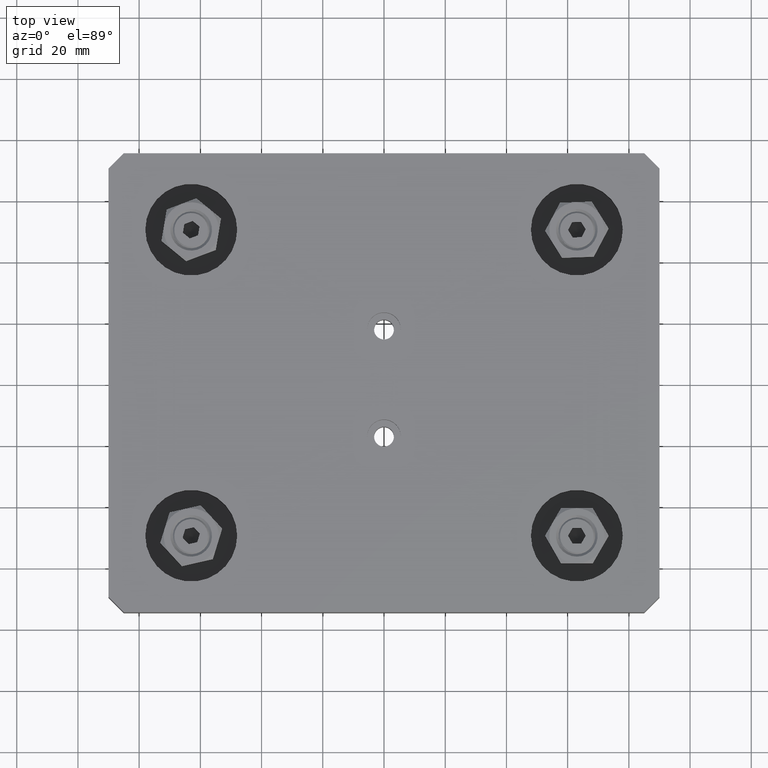
[diagram: clean part render]
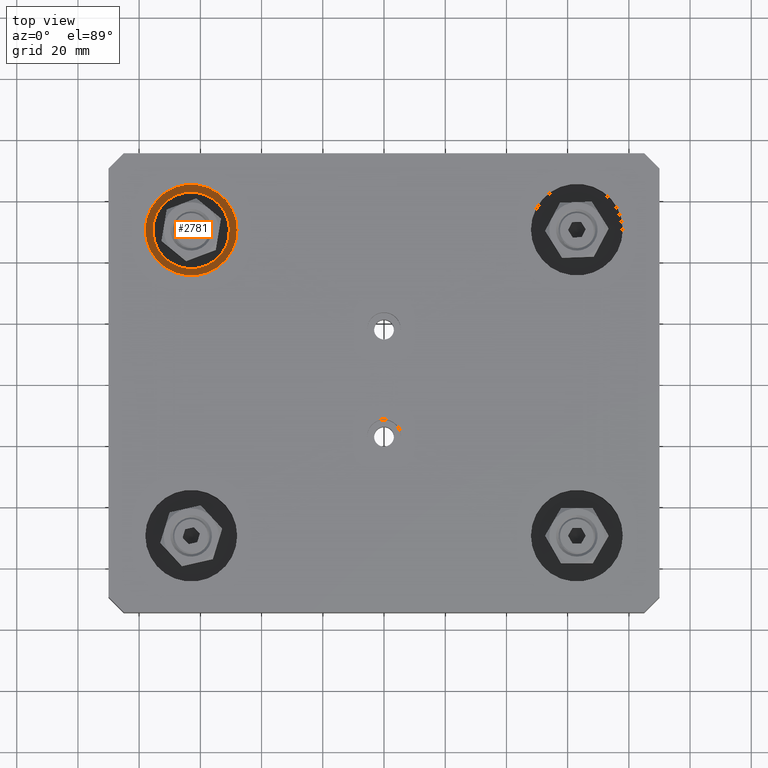
[diagram: same view with one face highlighted and labeled with its STEP entity id]
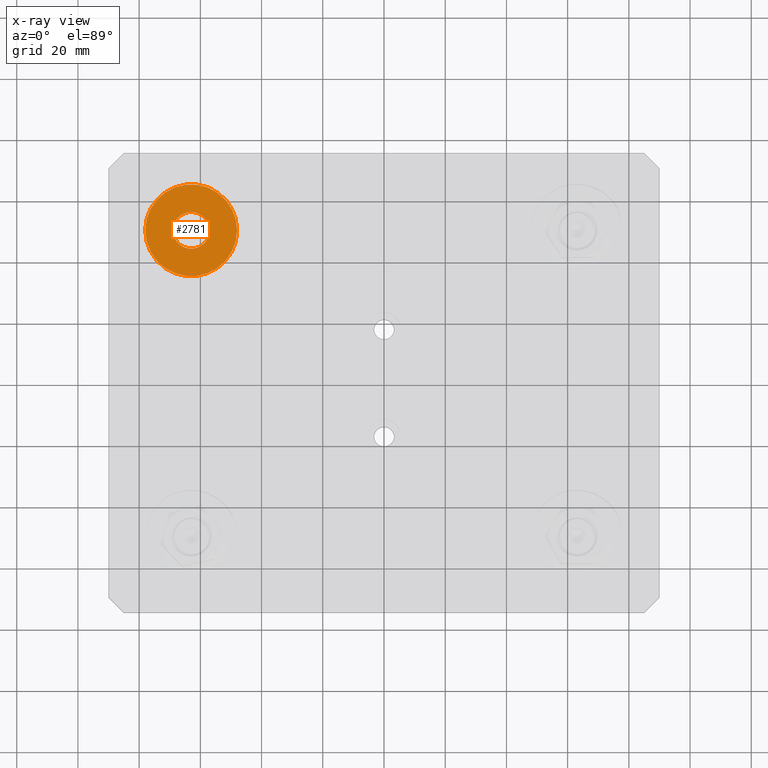
[diagram: x-ray of the same camera — body ghosted, the highlighted face saturated]
A machine part, top view. The second image highlights one B-rep face of the part: STEP entity #2781.
The next image is the same camera in x-ray: the body ghosted, the highlighted face saturated — about 0% of this face is hidden behind the body in this view.
In plain terms, the highlighted planar face has unit normal (0, 0, 1).
Its self-contained STEP definition (entity closure, byte-faithful):
#241=FACE_BOUND('',#634,.T.);
#289=CIRCLE('',#3194,15.);
#290=CIRCLE('',#3195,6.);
#442=FACE_OUTER_BOUND('',#633,.T.);
#633=EDGE_LOOP('',(#1962));
#634=EDGE_LOOP('',(#1963));
#1285=VERTEX_POINT('',#4545);
#1286=VERTEX_POINT('',#4547);
#1543=EDGE_CURVE('',#1285,#1285,#289,.T.);
#1544=EDGE_CURVE('',#1286,#1286,#290,.T.);
#1962=ORIENTED_EDGE('',*,*,#1543,.T.);
#1963=ORIENTED_EDGE('',*,*,#1544,.F.);
#2673=PLANE('',#3193);
#2781=ADVANCED_FACE('',(#442,#241),#2673,.T.);
#3193=AXIS2_PLACEMENT_3D('',#4544,#3620,#3621);
#3194=AXIS2_PLACEMENT_3D('',#4546,#3622,#3623);
#3195=AXIS2_PLACEMENT_3D('',#4548,#3624,#3625);
#3620=DIRECTION('center_axis',(0.,0.,1.));
#3621=DIRECTION('ref_axis',(1.,0.,0.));
#3622=DIRECTION('center_axis',(0.,0.,1.));
#3623=DIRECTION('ref_axis',(1.,0.,0.));
#3624=DIRECTION('center_axis',(0.,0.,1.));
#3625=DIRECTION('ref_axis',(1.,0.,0.));
#4544=CARTESIAN_POINT('Origin',(-63.,50.,8.));
#4545=CARTESIAN_POINT('',(-78.,50.,8.));
#4546=CARTESIAN_POINT('Origin',(-63.,50.,8.));
#4547=CARTESIAN_POINT('',(-69.,50.,8.00000000000001));
#4548=CARTESIAN_POINT('Origin',(-63.,50.,8.00000000000001));